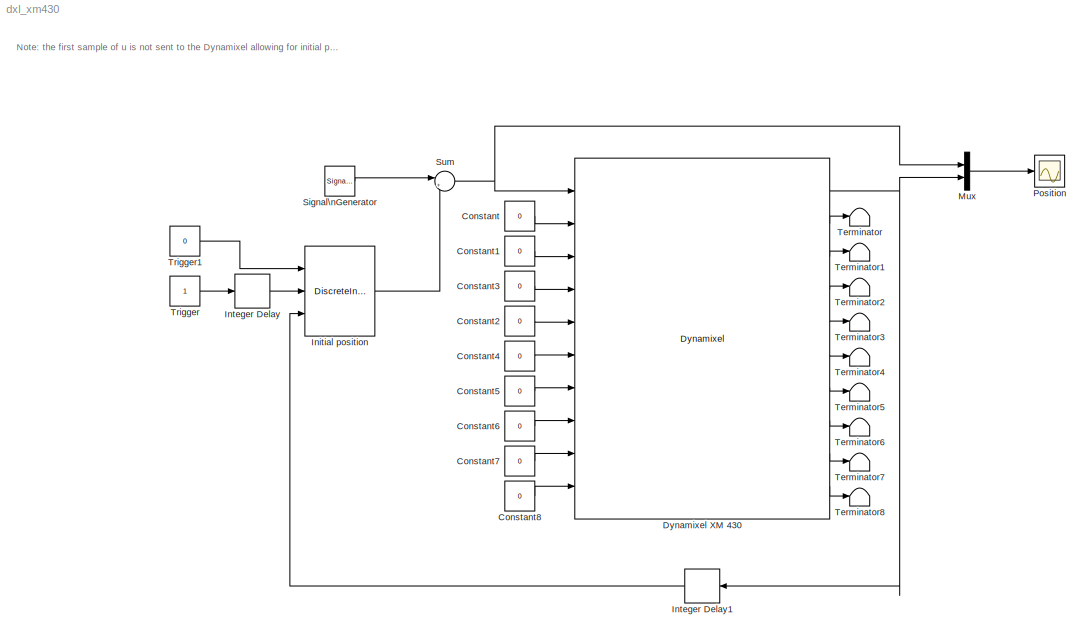
MODEL dxl_xm430
KIND model
BLOCK [Constant] Constant
  SID = 11
  SampleTime = 0.005
  Value = 0
BLOCK [Constant] Constant1
  SID = 12
  SampleTime = 0.005
  Value = 0
BLOCK [Constant] Constant2
  SID = 13
  SampleTime = 0.005
  Value = 0
BLOCK [Constant] Constant3
  SID = 14
  SampleTime = 0.005
  Value = 0
BLOCK [Constant] Constant4
  SID = 15
  SampleTime = 0.005
  Value = 0
BLOCK [Constant] Constant5
  SID = 16
  SampleTime = 0.005
  Value = 0
BLOCK [Constant] Constant6
  SID = 17
  SampleTime = 0.005
  Value = 0
BLOCK [Constant] Constant7
  SID = 18
  SampleTime = 0.005
  Value = 0
BLOCK [Constant] Constant8
  SID = 19
  SampleTime = 0.005
  Value = 0
BLOCK [Reference] Dynamixel XM 430  REF=rpi_blkst/Dynamixel  (lib defined in mdl_5f9edbe601a8, slx_830431f926a7)
  Ports = [10, 10]
  SID = 1
  SourceBlock = rpi_blkst/Dynamixel
  SourceProductName = RPI Blockset
  SourceType = Dynamixel actuator
  rpi_mask_Ts = 0.005
  rpi_mask_baudrate = 1000000
  rpi_mask_halt1_addr = 64
  rpi_mask_halt1_data = 0
  rpi_mask_halt1_length = 1
  rpi_mask_halt2_addr = 65
  rpi_mask_halt2_data = 0
  rpi_mask_halt2_length = 1
  rpi_mask_init1_addr = 11
  rpi_mask_init1_data = 4
  rpi_mask_init1_length = 1
  rpi_mask_init2_addr = 80
  rpi_mask_init2_data = 150
  rpi_mask_init2_length = 2
  rpi_mask_init3_addr = 82
  rpi_mask_init3_data = 5000
  rpi_mask_init3_length = 2
  rpi_mask_init4_addr = 84
  rpi_mask_init4_data = 1500
  rpi_mask_init4_length = 2
  rpi_mask_init5_addr = 90
  rpi_mask_init5_data = 200
  rpi_mask_init5_length = 2
  rpi_mask_init6_addr = 88
  rpi_mask_init6_data = 0
  rpi_mask_init6_length = 2
  rpi_mask_init7_addr = 65
  rpi_mask_init7_data = 1
  rpi_mask_init7_length = 1
  rpi_mask_init8_addr = 64
  rpi_mask_init8_data = 1
  rpi_mask_init8_length = 1
  rpi_mask_nbid = 1
  rpi_mask_portname = 0
  rpi_mask_proto = 2
  rpi_mask_read_addr = 132
  rpi_mask_read_length = 4
  rpi_mask_read_sign = 1
  rpi_mask_startid = 1
  rpi_mask_write_addr = 116
  rpi_mask_write_length = 4
BLOCK [DiscreteIntegrator] Initial position
  ExternalReset = rising
  ICPrevOutput = DiscIntNeverNeededParam
  ICPrevScaledInput = DiscIntNeverNeededParam
  InitialConditionSource = external
  IntegratorMethod = Integration: Trapezoidal
  Ports = [3, 1]
  SID = 33
  SampleTime = 0.005
BLOCK [Delay] Integer Delay
  DelayLength = 1
  InputPortMap = u0
  Ports = [1, 1]
  SID = 40
  UserData = DataTag0
  UserDataPersistent = on
BLOCK [Delay] Integer Delay1
  DelayLength = 1
  InputPortMap = u0
  Ports = [1, 1]
  SID = 41
  UserData = DataTag1
  UserDataPersistent = on
BLOCK [Mux] Mux
  DisplayOption = bar
  Inputs = 2
  Ports = [2, 1]
  SID = 34
BLOCK [Scope] Position
  Floating = off
  NumInputPorts = 1
  Ports = [1]
  SID = 20
  ScopeSpecificationString = Simulink.scopes.TimeScopeBlockCfg('CurrentConfiguration', extmgr.ConfigurationSet(extmgr.Configuration('Core','General UI',true),extmgr.Configuration('Core','Source UI',true),extmgr.Configuration('Sources','WiredSimulink',true,'DataLoggingSaveFormat','StructureWithTime','DataLoggingLimitDataPoints',true,'DataLoggingDecimation','1','DataLoggingDecimateData',true),extmgr.Configuration('Visuals','Tim...<+1648ch>
BLOCK [SignalGenerator] Signal\nGenerator
  Amplitude = 50
  Ports = [0, 1]
  SID = 37
  WaveForm = sawtooth
BLOCK [Sum] Sum
  IconShape = round
  InputSameDT = off
  Inputs = |++
  OutDataTypeStr = Inherit: Inherit via internal rule
  Ports = [2, 1]
  SID = 38
  SaturateOnIntegerOverflow = off
BLOCK [Terminator] Terminator
  SID = 2
BLOCK [Terminator] Terminator1
  SID = 3
BLOCK [Terminator] Terminator2
  SID = 4
BLOCK [Terminator] Terminator3
  SID = 5
BLOCK [Terminator] Terminator4
  SID = 6
BLOCK [Terminator] Terminator5
  SID = 7
BLOCK [Terminator] Terminator6
  SID = 8
BLOCK [Terminator] Terminator7
  SID = 9
BLOCK [Terminator] Terminator8
  SID = 10
BLOCK [Constant] Trigger
  SID = 39
  SampleTime = 0.005
BLOCK [Constant] Trigger1
  SID = 42
  SampleTime = 0.005
  Value = 0
ANNOTATION (root): Note: the first sample of u is not sent to the Dynamixel allowing for initial position initialization.
LINE Constant1:1 -> Dynamixel XM 430:3
LINE Constant2:1 -> Dynamixel XM 430:5
LINE Constant3:1 -> Dynamixel XM 430:4
LINE Constant4:1 -> Dynamixel XM 430:6
LINE Constant5:1 -> Dynamixel XM 430:7
LINE Constant6:1 -> Dynamixel XM 430:8
LINE Constant7:1 -> Dynamixel XM 430:9
LINE Constant8:1 -> Dynamixel XM 430:10
LINE Constant:1 -> Dynamixel XM 430:2
NET Dynamixel XM 430:1 -> Integer Delay1:1, Mux:2
LINE Dynamixel XM 430:10 -> Terminator8:1
LINE Dynamixel XM 430:2 -> Terminator:1
LINE Dynamixel XM 430:3 -> Terminator1:1
LINE Dynamixel XM 430:4 -> Terminator2:1
LINE Dynamixel XM 430:5 -> Terminator3:1
LINE Dynamixel XM 430:6 -> Terminator4:1
LINE Dynamixel XM 430:7 -> Terminator5:1
LINE Dynamixel XM 430:8 -> Terminator6:1
LINE Dynamixel XM 430:9 -> Terminator7:1
LINE Initial position:1 -> Sum:2
LINE Integer Delay1:1 -> Initial position:3
LINE Integer Delay:1 -> Initial position:2
LINE Mux:1 -> Position:1
LINE Signal\nGenerator:1 -> Sum:1
NET Sum:1 -> Dynamixel XM 430:1, Mux:1
LINE Trigger1:1 -> Initial position:1
LINE Trigger:1 -> Integer Delay:1
note: NET lines group one-source signal fan-out (src -> all destinations, sorted); 1:1 wires keep LINE
